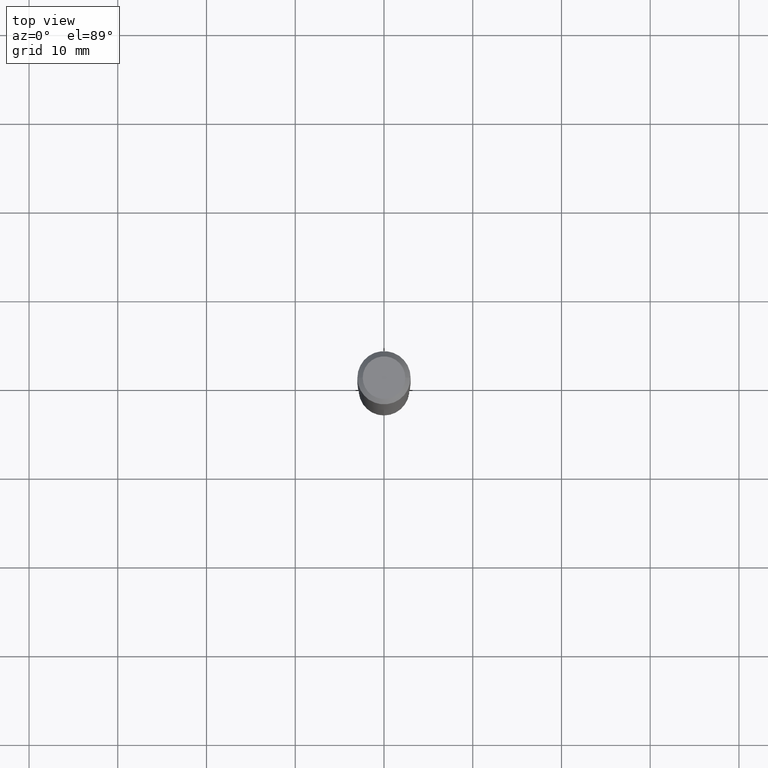
[diagram: clean part render]
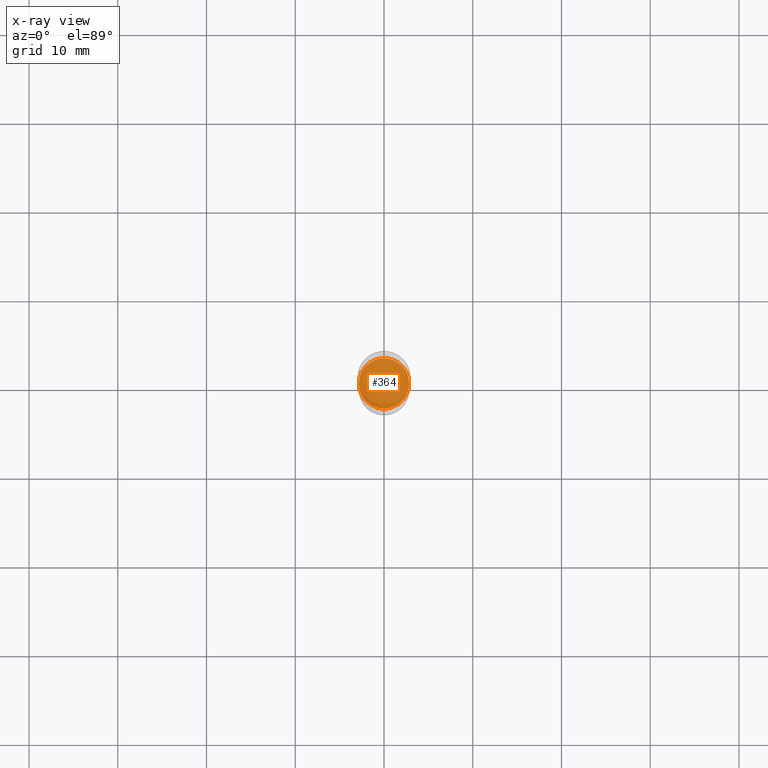
[diagram: x-ray — body ghosted, one internal face saturated and labeled with its STEP entity id]
A machine part, top view, then the same camera in x-ray: the body is ghosted and one INTERNAL B-rep face — a face not visible from any outside direction — is saturated and labeled: STEP entity #364.
In plain terms, the highlighted planar face has unit normal (-0, 0, 1).
Its self-contained STEP definition (entity closure, byte-faithful):
#10 = DIRECTION ( 'NONE',  ( -2.445468806185136597E-29, 3.491481338843145583E-15, 1.000000000000000000 ) ) ;
#11 = VERTEX_POINT ( 'NONE', #355 ) ;
#25 = CIRCLE ( 'NONE', #387, 0.1116999999999999937 ) ;
#74 = DIRECTION ( 'NONE',  ( 1.000000000000000000, -6.982962677686262766E-15, 0.000000000000000000 ) ) ;
#81 = VERTEX_POINT ( 'NONE', #213 ) ;
#151 = DIRECTION ( 'NONE',  ( 1.000000000000000000, -6.982962677686262766E-15, 0.000000000000000000 ) ) ;
#185 = CIRCLE ( 'NONE', #191, 0.1116999999999999937 ) ;
#191 = AXIS2_PLACEMENT_3D ( 'NONE', #339, #10, #151 ) ;
#207 = ORIENTED_EDGE ( 'NONE', *, *, #332, .F. ) ;
#213 = CARTESIAN_POINT ( 'NONE',  ( -0.1116999999999999937, -4.425883175489550774E-15, -1.495700000000000029 ) ) ;
#228 = EDGE_CURVE ( 'NONE', #81, #11, #25, .T. ) ;
#257 = CARTESIAN_POINT ( 'NONE',  ( 3.657687693411109493E-29, -5.222208638507693246E-15, -1.495700000000000029 ) ) ;
#297 = CARTESIAN_POINT ( 'NONE',  ( 3.657687693411109493E-29, -5.222208638507693246E-15, -1.495700000000000029 ) ) ;
#299 = AXIS2_PLACEMENT_3D ( 'NONE', #257, #415, #324 ) ;
#324 = DIRECTION ( 'NONE',  ( 1.000000000000000000, -6.982962677686265922E-15, 4.876176775795935793E-29 ) ) ;
#332 = EDGE_CURVE ( 'NONE', #11, #81, #185, .T. ) ;
#339 = CARTESIAN_POINT ( 'NONE',  ( 3.657687693411109493E-29, -5.222208638507693246E-15, -1.495700000000000029 ) ) ;
#343 = EDGE_LOOP ( 'NONE', ( #207, #430 ) ) ;
#355 = CARTESIAN_POINT ( 'NONE',  ( 0.1116999999999999937, -6.002205569605248651E-15, -1.495700000000000029 ) ) ;
#364 = ADVANCED_FACE ( 'NONE', ( #374 ), #386, .F. ) ;
#374 = FACE_OUTER_BOUND ( 'NONE', #343, .T. ) ;
#386 = PLANE ( 'NONE',  #299 ) ;
#387 = AXIS2_PLACEMENT_3D ( 'NONE', #297, #408, #74 ) ;
#408 = DIRECTION ( 'NONE',  ( -2.445468806185136597E-29, 3.491481338843145583E-15, 1.000000000000000000 ) ) ;
#415 = DIRECTION ( 'NONE',  ( -2.438088387897960049E-29, 3.491481338843145188E-15, 1.000000000000000000 ) ) ;
#430 = ORIENTED_EDGE ( 'NONE', *, *, #228, .F. ) ;